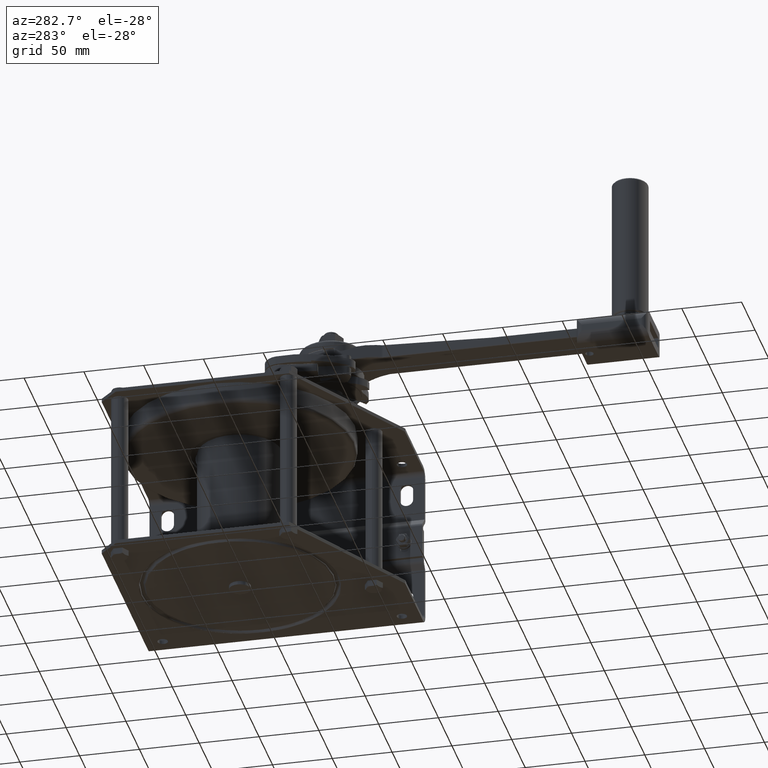
[diagram: clean part render]
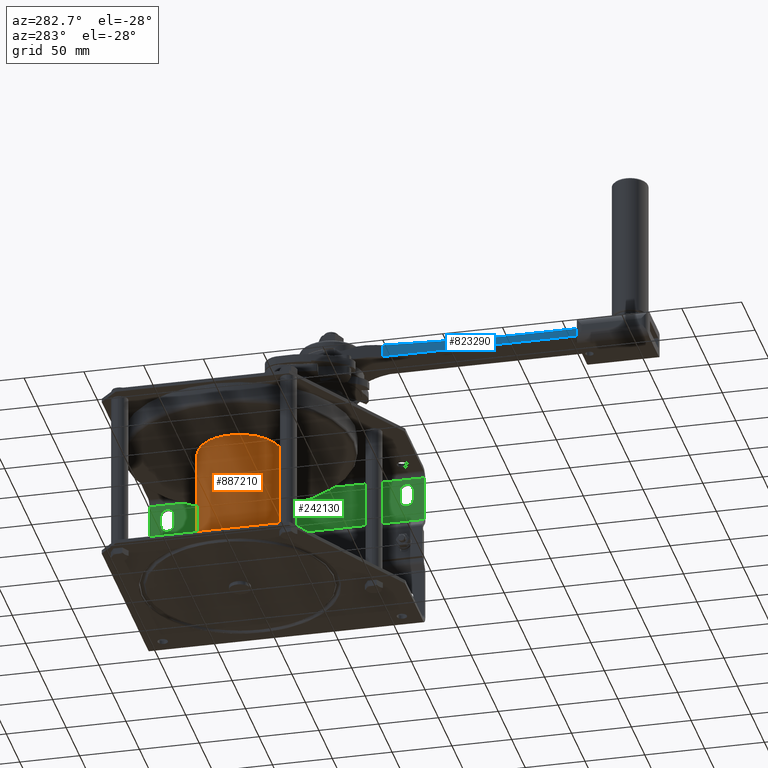
[diagram: same view with three faces highlighted in distinct colors, each labeled with its STEP entity id]
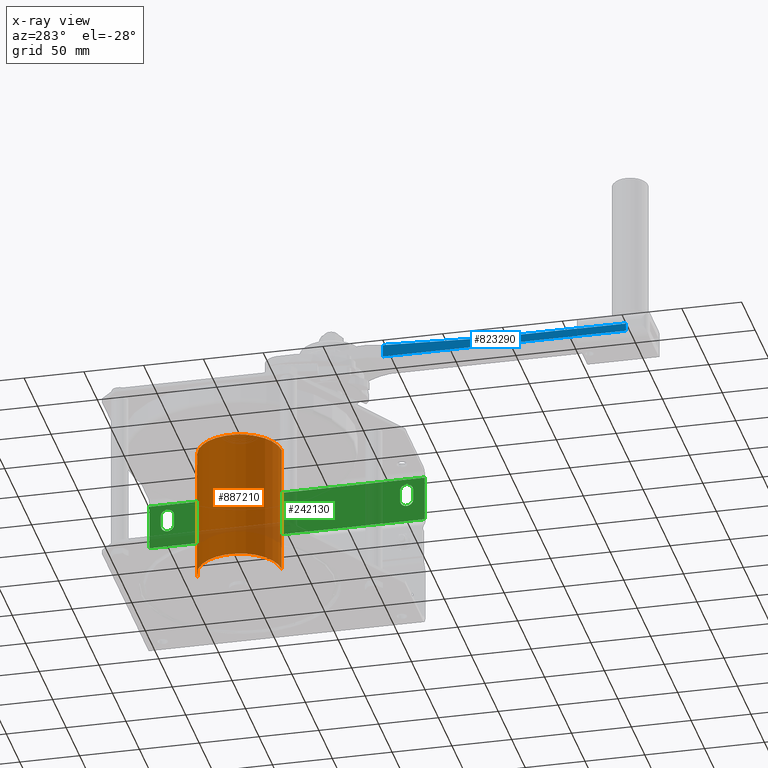
[diagram: x-ray of the same camera — body ghosted, the three highlighted faces saturated]
A machine part, auxiliary view with three faces highlighted in distinct colors.
The next image is the same camera in x-ray (body ghosted, the three faces saturated) — at least one of them is partly hidden behind the body in this view.
Their STEP definitions:

[orange] entity #887210 — the highlighted cylindrical surface (partial cylindrical patch) has radius 35 mm, axis along (0, 0, -1).
#1140=CARTESIAN_POINT('',(-38.9683450918841,-260.918201438849,0.));
#1150=DIRECTION('',(1.,0.,0.));
#1160=DIRECTION('',(0.,-1.,0.));
#1170=AXIS2_PLACEMENT_3D('',#1140,#1150,#1160);
#1180=CIRCLE('',#1170,35.);
#1190=CARTESIAN_POINT('',(-38.9683450918841,-295.918201438849,0.));
#1200=VERTEX_POINT('',#1190);
#1210=CARTESIAN_POINT('',(-38.9683450918841,-225.918201438849,
-4.28626379701574E-15));
#1220=VERTEX_POINT('',#1210);
#1250=EDGE_CURVE('',#1220,#1200,#1180,.T.);
#3950=CARTESIAN_POINT('',(-138.088476459293,-294.459221101346,10.));
#3960=VERTEX_POINT('',#3950);
#4120=CARTESIAN_POINT('',(-147.195951674312,-294.459221101346,10.));
#4130=VERTEX_POINT('',#4120);
#4160=CARTESIAN_POINT('',(-35.9683450918841,-294.459221101346,10.));
#4170=DIRECTION('',(1.,0.,0.));
#4180=VECTOR('',#4170,1.);
#4190=LINE('',#4160,#4180);
#4200=EDGE_CURVE('',#4130,#3960,#4190,.T.);
#4720=CARTESIAN_POINT('',(-35.9683450918841,-295.918201438849,0.));
#4730=DIRECTION('',(1.,0.,0.));
#4740=VECTOR('',#4730,1.);
#4750=LINE('',#4720,#4740);
#4760=CARTESIAN_POINT('',(-148.968345091884,-295.918201438849,0.));
#4770=VERTEX_POINT('',#4760);
#4780=EDGE_CURVE('',#4770,#1200,#4750,.T.);
#4810=CARTESIAN_POINT('',(-35.9683450918841,-225.918201438849,
-4.28626379701574E-15));
#4820=DIRECTION('',(1.,0.,0.));
#4830=VECTOR('',#4820,1.);
#4840=LINE('',#4810,#4830);
#4850=CARTESIAN_POINT('',(-148.968345091884,-225.918201438849,
-4.28626379701574E-15));
#4860=VERTEX_POINT('',#4850);
#4870=EDGE_CURVE('',#4860,#1220,#4840,.T.);
#4890=CARTESIAN_POINT('',(-148.968345091884,-260.918201438849,0.));
#4900=DIRECTION('',(1.,0.,0.));
#4910=DIRECTION('',(0.,-1.,0.));
#4920=AXIS2_PLACEMENT_3D('',#4890,#4900,#4910);
#4930=CIRCLE('',#4920,35.);
#5720=CARTESIAN_POINT('',(-132.557450580084,-260.918201438849,0.));
#5730=DIRECTION('',(-0.916515138991168,0.4,5.61203665667813E-17));
#5740=DIRECTION('',(-0.4,-0.916515138991168,-1.28587913910472E-16));
#5750=AXIS2_PLACEMENT_3D('',#5720,#5730,#5740);
#5760=ELLIPSE('',#5750,38.1881307912987,35.);
#6730=CARTESIAN_POINT('',(-139.341377059975,-295.026886023552,
7.84841613965976));
#6740=VERTEX_POINT('',#6730);
#6780=CARTESIAN_POINT('',(-64.059657628427,-260.918201438849,0.));
#6790=DIRECTION('',(0.412696803190931,-0.910868458470259,
-2.52703909523059E-17));
#6800=DIRECTION('',(0.910868458470259,0.412696803190931,
1.1449523215368E-17));
#6810=AXIS2_PLACEMENT_3D('',#6780,#6790,#6800);
#6820=ELLIPSE('',#6810,84.808023055627,35.);
#6830=EDGE_CURVE('',#3960,#6740,#6820,.T.);
#22110=CARTESIAN_POINT('',(-147.468345091884,-295.083352828761,
7.59884402421954));
#22120=VERTEX_POINT('',#22110);
#22150=EDGE_CURVE('',#22120,#4130,#5760,.T.);
#29210=CARTESIAN_POINT('',(-140.069750117777,-295.322963647538,
6.42746741443273));
#29220=VERTEX_POINT('',#29210);
#29230=CARTESIAN_POINT('',(-143.916729589962,-295.908143948287,
0.839001302859505));
#29240=VERTEX_POINT('',#29230);
#29270=CARTESIAN_POINT('',(-143.916729589962,-295.908143948288,
0.839001302875192));
#29280=CARTESIAN_POINT('',(-143.907771796913,-295.906403399068,
0.911589649184346));
#29290=CARTESIAN_POINT('',(-143.897655053906,-295.904440178436,
0.984033928089503));
#29300=CARTESIAN_POINT('',(-143.886391703851,-295.902258915092,
1.05627766186201));
#29310=CARTESIAN_POINT('',(-143.875127013251,-295.900077392138,
1.12852999395688));
#29320=CARTESIAN_POINT('',(-143.862722359875,-295.897679111346,
1.20054471112048));
#29330=CARTESIAN_POINT('',(-143.849174945952,-295.895066249986,
1.27237100857798));
#29340=CARTESIAN_POINT('',(-143.835624254548,-295.892452756506,
1.34421468272954));
#29350=CARTESIAN_POINT('',(-143.820918590222,-295.889622331774,
1.41592617560064));
#29360=CARTESIAN_POINT('',(-143.805064653012,-295.886579521027,
1.48745900845064));
#29370=CARTESIAN_POINT('',(-143.789210735149,-295.883536713994,
1.55899175401117));
#29380=CARTESIAN_POINT('',(-143.772208562627,-295.880281526336,
1.63034566190468));
#29390=CARTESIAN_POINT('',(-143.754068601153,-295.876819705243,
1.70147256942948));
#29400=CARTESIAN_POINT('',(-143.735928656667,-295.873357887392,
1.77259941035014));
#29410=CARTESIAN_POINT('',(-143.716650953772,-295.869689444415,
1.84349907000315));
#29420=CARTESIAN_POINT('',(-143.696249859953,-295.86582131837,
1.91412245075285));
#29430=CARTESIAN_POINT('',(-143.675848779831,-295.861953194923,
1.9847457840843));
#29440=CARTESIAN_POINT('',(-143.654324350626,-295.857885399384,
2.05509265769575));
#29450=CARTESIAN_POINT('',(-143.631694875725,-295.853626033416,
2.12511373749672));
#29460=CARTESIAN_POINT('',(-143.609065410414,-295.849366669253,
2.19513478762159));
#29470=CARTESIAN_POINT('',(-143.585330951357,-295.844915747993,
2.26482986603913));
#29480=CARTESIAN_POINT('',(-143.560513680145,-295.840282470222,
2.33415004620238));
#29490=CARTESIAN_POINT('',(-143.535696413682,-295.835649193339,
2.40347021309875));
#29500=CARTESIAN_POINT('',(-143.509796395828,-295.830833575285,
2.47241530913741));
#29510=CARTESIAN_POINT('',(-143.482839546407,-295.825845832476,
2.54093740342128));
#29520=CARTESIAN_POINT('',(-143.455882696214,-295.820858089523,
2.60945949966808));
#29530=CARTESIAN_POINT('',(-143.427869082695,-295.815698238791,
2.67755842878124));
#29540=CARTESIAN_POINT('',(-143.398828150253,-295.810377410075,
2.74518778828703));
#29550=CARTESIAN_POINT('',(-143.369787210858,-295.805056580087,
2.81281716398241));
#29560=CARTESIAN_POINT('',(-143.339719026924,-295.799574790347,
2.87997681346053));
#29570=CARTESIAN_POINT('',(-143.30865628741,-295.793943965323,
2.94662234212193));
#29580=CARTESIAN_POINT('',(-143.277593534099,-295.788313137798,
3.01326790038788));
#29590=CARTESIAN_POINT('',(-143.245536304443,-295.782533294097,
3.07939919118904));
#29600=CARTESIAN_POINT('',(-143.212520191476,-295.776617021362,
3.14497425694479));
#29610=CARTESIAN_POINT('',(-143.179504057159,-295.7707007448,
3.21054936510721));
#29620=CARTESIAN_POINT('',(-143.145529122388,-295.764648058821,
3.27556811244016));
#29630=CARTESIAN_POINT('',(-143.110633487671,-295.75847207083,
3.33999136081426));
#29640=CARTESIAN_POINT('',(-143.075737823276,-295.752296077587,
3.40441466397677));
#29650=CARTESIAN_POINT('',(-143.039921544267,-295.745996802098,
3.46824234392457));
#29660=CARTESIAN_POINT('',(-143.003224808714,-295.739587721922,
3.53143842152421));
#29670=CARTESIAN_POINT('',(-142.966528034265,-295.733178634953,
3.59463456610889));
#29680=CARTESIAN_POINT('',(-142.928950890092,-295.726659762881,
3.65719899596626));
#29690=CARTESIAN_POINT('',(-142.890535089789,-295.720044798119,
3.7190991915855));
#29700=CARTESIAN_POINT('',(-142.813753725501,-295.706823518979,
3.84281863597718));
#29710=CARTESIAN_POINT('',(-142.733245477897,-295.693153236043,
3.96449212554464));
#29720=CARTESIAN_POINT('',(-142.649150822278,-295.679116934681,
4.0839630130089));
#29730=CARTESIAN_POINT('',(-142.565060328566,-295.665081327986,
4.20342798777016));
#29740=CARTESIAN_POINT('',(-142.477400165775,-295.650682672947,
4.32066401962363));
#29750=CARTESIAN_POINT('',(-142.386388242627,-295.636018293801,
4.43544730844534));
#29760=CARTESIAN_POINT('',(-142.295376548946,-295.621353951629,
4.55023030786581));
#29770=CARTESIAN_POINT('',(-142.201014662486,-295.606424268125,
4.66255834653025));
#29780=CARTESIAN_POINT('',(-142.103551853745,-295.591331097849,
4.77221957271287));
#29790=CARTESIAN_POINT('',(-142.006089121976,-295.576237939493,
4.88188071228949));
#29800=CARTESIAN_POINT('',(-141.905527222698,-295.560981698545,
4.98887299922797));
#29810=CARTESIAN_POINT('',(-141.802142292596,-295.545666056756,
5.09300443113792));
#29820=CARTESIAN_POINT('',(-141.698757279026,-295.530350402602,
5.19713594711804));
#29830=CARTESIAN_POINT('',(-141.592551106632,-295.514975752156,
5.29840478445138));
#29840=CARTESIAN_POINT('',(-141.483821068822,-295.499644794013,
5.39664483485848));
#29850=CARTESIAN_POINT('',(-141.375090775163,-295.484313799795,
5.49488511643008));
#29860=CARTESIAN_POINT('',(-141.263838552668,-295.469026885278,
5.59009502308857));
#29870=CARTESIAN_POINT('',(-141.150376082323,-295.453882966303,
5.68213880808858));
#29880=CARTESIAN_POINT('',(-141.03691018196,-295.438738589521,
5.77418537561157));
#29890=CARTESIAN_POINT('',(-140.921249294917,-295.423739261498,
5.86305449061014));
#29900=CARTESIAN_POINT('',(-140.803673406592,-295.408972708105,
5.94867188974566));
#29910=CARTESIAN_POINT('',(-140.686036673122,-295.394198513068,
6.03433359560983));
#29920=CARTESIAN_POINT('',(-140.565918420977,-295.379586191947,
6.1171514617583));
#29930=CARTESIAN_POINT('',(-140.443524866962,-295.365222618656,
6.19699377424066));
#29940=CARTESIAN_POINT('',(-140.321131677863,-295.35085908819,
6.27683584867289));
#29950=CARTESIAN_POINT('',(-140.196464336354,-295.33674455031,
6.35370139553813));
#29960=CARTESIAN_POINT('',(-140.069750117779,-295.322963647541,
6.42746741444114));
#29970=B_SPLINE_CURVE_WITH_KNOTS('',3,(#29270,#29280,#29290,#29300,
#29310,#29320,#29330,#29340,#29350,#29360,#29370,#29380,#29390,#29400,
#29410,#29420,#29430,#29440,#29450,#29460,#29470,#29480,#29490,#29500,
#29510,#29520,#29530,#29540,#29550,#29560,#29570,#29580,#29590,#29600,
#29610,#29620,#29630,#29640,#29650,#29660,#29670,#29680,#29690,#29700,
#29710,#29720,#29730,#29740,#29750,#29760,#29770,#29780,#29790,#29800,
#29810,#29820,#29830,#29840,#29850,#29860,#29870,#29880,#29890,#29900,
#29910,#29920,#29930,#29940,#29950,#29960),.UNSPECIFIED.,.F.,.F.,(4,3,3,
3,3,3,3,3,3,3,3,3,3,3,3,3,3,3,3,3,3,3,3,4),(0.,0.219472684100402,
0.438874913104141,0.658612841374631,0.878844113129222,1.09949786942561,
1.32048994747013,1.5417252344632,1.76309981267972,1.98450294149395,
2.20581892594507,2.42692892332758,2.64771273968383,2.86805066743666,
3.08782541410162,3.52728073367279,3.96829706522129,4.41040555525408,
4.8529947984669,5.29536489606961,5.73676267247842,6.17642502874444,
6.61611476493343,7.05731007654863),.UNSPECIFIED.);
#29980=EDGE_CURVE('',#29240,#29220,#29970,.T.);
#30230=EDGE_CURVE('',#4860,#4770,#4930,.T.);
#92870=CARTESIAN_POINT('',(-143.916729589962,-295.908143948287,
0.839001302859505));
#92880=CARTESIAN_POINT('',(-144.067559649119,-295.901374153536,
1.12133069657533));
#92890=CARTESIAN_POINT('',(-144.218294330287,-295.891185868885,
1.40363529798508));
#92900=CARTESIAN_POINT('',(-144.368817036803,-295.877576433115,
1.68585290291929));
#92910=CARTESIAN_POINT('',(-144.519335826561,-295.863967351477,
1.96806316425799));
#92920=CARTESIAN_POINT('',(-144.669651826243,-295.846937175727,
2.25020349289993));
#92930=CARTESIAN_POINT('',(-144.81969330864,-295.826473639242,
2.53229776750367));
#92940=CARTESIAN_POINT('',(-144.969730977882,-295.806010622817,
2.8143848729615));
#92950=CARTESIAN_POINT('',(-145.119477636593,-295.78211595989,
3.09639493664017));
#92960=CARTESIAN_POINT('',(-145.268813509958,-295.754781813935,
3.37826401724428));
#92970=CARTESIAN_POINT('',(-145.418160922835,-295.727445555809,
3.66015487849227));
#92980=CARTESIAN_POINT('',(-145.567037334524,-295.696683727083,
3.94179045043793));
#92990=CARTESIAN_POINT('',(-145.715537025916,-295.662437089309,
4.2235161968515));
#93000=CARTESIAN_POINT('',(-146.012523692932,-295.593946746241,
4.78694356599592));
#93010=CARTESIAN_POINT('',(-146.307811392253,-295.511547796761,
5.35036446398221));
#93020=CARTESIAN_POINT('',(-146.600314149151,-295.415083549538,
5.91313154269702));
#93030=CARTESIAN_POINT('',(-146.746565505758,-295.36685143313,
6.19451504003015));
#93040=CARTESIAN_POINT('',(-146.892120088122,-295.315103290517,
6.47573531449838));
#93050=CARTESIAN_POINT('',(-147.036838732406,-295.259820845438,
6.75671344168294));
#93060=CARTESIAN_POINT('',(-147.181557377872,-295.204538399907,
7.03769157116063));
#93070=CARTESIAN_POINT('',(-147.325440111762,-295.145721675293,
7.31842754547412));
#93080=CARTESIAN_POINT('',(-147.468345091884,-295.083352828761,
7.59884402421953));
#93090=B_SPLINE_CURVE_WITH_KNOTS('',3,(#92870,#92880,#92890,#92900,
#92910,#92920,#92930,#92940,#92950,#92960,#92970,#92980,#92990,#93000,
#93010,#93020,#93030,#93040,#93050,#93060,#93070,#93080),.UNSPECIFIED.,
.F.,.F.,(4,3,3,3,3,3,3,4),(0.,0.960473962419697,1.92089326297305,
2.88138448379833,3.84189322522058,5.76527986408851,6.72774015008772,
7.69032156822526),.UNSPECIFIED.);
#93100=EDGE_CURVE('',#29240,#22120,#93090,.T.);
#93150=CARTESIAN_POINT('',(-139.341377059975,-295.026886023552,
7.84841613965965));
#93160=CARTESIAN_POINT('',(-139.401452027429,-295.054104824235,
7.73012507675297));
#93170=CARTESIAN_POINT('',(-139.461698454632,-295.08068498085,
7.61179357446254));
#93180=CARTESIAN_POINT('',(-139.522104469048,-295.106628123907,
7.49342917497954));
#93190=CARTESIAN_POINT('',(-139.582510483381,-295.132571266927,
7.37506477566133));
#93200=CARTESIAN_POINT('',(-139.643076084955,-295.157877395912,
7.2566674798095));
#93210=CARTESIAN_POINT('',(-139.703789491544,-295.182548211933,
7.13824489730199));
#93220=CARTESIAN_POINT('',(-139.764502898095,-295.207219027938,
7.01982231486937));
#93230=CARTESIAN_POINT('',(-139.825364109651,-295.231254530526,
6.90137444644832));
#93240=CARTESIAN_POINT('',(-139.886361431421,-295.254656497177,
6.78290896499636));
#93250=CARTESIAN_POINT('',(-139.947358753229,-295.278058463842,
6.66444348347089));
#93260=CARTESIAN_POINT('',(-140.008492185174,-295.30082689413,
6.54596038965125));
#93270=CARTESIAN_POINT('',(-140.069750117777,-295.322963647538,
6.42746741443273));
#93280=B_SPLINE_CURVE_WITH_KNOTS('',3,(#93150,#93160,#93170,#93180,
#93190,#93200,#93210,#93220,#93230,#93240,#93250,#93260,#93270),
.UNSPECIFIED.,.F.,.F.,(4,3,3,3,4),(0.,0.406248999550133,
0.812365317840098,1.21831729707885,1.62407242181318),.UNSPECIFIED.);
#93290=EDGE_CURVE('',#6740,#29220,#93280,.T.);
#887020=CARTESIAN_POINT('',(-35.9683450918841,-260.918201438849,0.));
#887030=DIRECTION('',(1.,0.,0.));
#887040=DIRECTION('',(0.,-1.,0.));
#887050=AXIS2_PLACEMENT_3D('',#887020,#887030,#887040);
#887060=CYLINDRICAL_SURFACE('',#887050,35.);
#887070=ORIENTED_EDGE('',*,*,#4780,.T.);
#887080=ORIENTED_EDGE('',*,*,#30230,.T.);
#887090=ORIENTED_EDGE('',*,*,#4870,.F.);
#887100=ORIENTED_EDGE('',*,*,#1250,.F.);
#887110=EDGE_LOOP('',(#887100,#887090,#887080,#887070));
#887120=FACE_OUTER_BOUND('',#887110,.T.);
#887130=ORIENTED_EDGE('',*,*,#93100,.T.);
#887140=ORIENTED_EDGE('',*,*,#29980,.F.);
#887150=ORIENTED_EDGE('',*,*,#93290,.T.);
#887160=ORIENTED_EDGE('',*,*,#6830,.T.);
#887170=ORIENTED_EDGE('',*,*,#4200,.T.);
#887180=ORIENTED_EDGE('',*,*,#22150,.T.);
#887190=EDGE_LOOP('',(#887180,#887170,#887160,#887150,#887140,#887130));
#887200=FACE_BOUND('',#887190,.T.);
#887210=ADVANCED_FACE('',(#887120,#887200),#887060,.T.);

[blue] entity #823290 — the highlighted planar face has unit normal (-1, -0, 0).
#792650=CARTESIAN_POINT('',(-245.531086791681,16.631798561152,
-23.9999679487048));
#792660=VERTEX_POINT('',#792650);
#792690=CARTESIAN_POINT('',(-245.531086791681,-55.8682014388476,
-23.9999679487048));
#792700=DIRECTION('',(0.,1.,-9.71445146547012E-17));
#792710=VECTOR('',#792700,1.);
#792720=LINE('',#792690,#792710);
#792730=CARTESIAN_POINT('',(-245.531086791681,-55.8682014388476,
-23.9999679487048));
#792740=VERTEX_POINT('',#792730);
#792750=EDGE_CURVE('',#792740,#792660,#792720,.T.);
#821690=CARTESIAN_POINT('',(-245.531086791681,-55.8682014388476,
-23.9999679487048));
#821700=DIRECTION('',(-0.0399680383488716,-0.999200958721789,
-1.04083408558608E-17));
#821710=VECTOR('',#821700,1.);
#821720=LINE('',#821690,#821710);
#821730=CARTESIAN_POINT('',(-249.163194441494,-146.670892684177,
-23.9999679487047));
#821740=VERTEX_POINT('',#821730);
#821750=EDGE_CURVE('',#792740,#821740,#821720,.T.);
#822820=CARTESIAN_POINT('',(-237.731086791681,56.6317985611524,
-23.9999679487048));
#822830=DIRECTION('',(0.,9.71445146547012E-17,1.));
#822840=DIRECTION('',(0.,-1.,9.71445146547012E-17));
#822850=AXIS2_PLACEMENT_3D('',#822820,#822830,#822840);
#822860=PLANE('',#822850);
#822870=CARTESIAN_POINT('',(-237.731086791681,-146.670892684177,
-23.9999679487047));
#822880=DIRECTION('',(1.,8.53356277280338E-32,-4.61853741903931E-48));
#822890=VECTOR('',#822880,1.);
#822900=LINE('',#822870,#822890);
#822910=CARTESIAN_POINT('',(-238.731086791681,-146.670892684177,
-23.9999679487047));
#822920=VERTEX_POINT('',#822910);
#822930=EDGE_CURVE('',#821740,#822920,#822900,.T.);
#822940=ORIENTED_EDGE('',*,*,#822930,.T.);
#822950=ORIENTED_EDGE('',*,*,#821750,.T.);
#822960=ORIENTED_EDGE('',*,*,#792750,.F.);
#822970=CARTESIAN_POINT('',(0.,16.631798561152,-23.9999679487048));
#822980=DIRECTION('',(1.,0.,-0.));
#822990=VECTOR('',#822980,1.);
#823000=LINE('',#822970,#822990);
#823010=CARTESIAN_POINT('',(-245.397112495668,16.631798561152,
-23.9999679487048));
#823020=VERTEX_POINT('',#823010);
#823030=EDGE_CURVE('',#792660,#823020,#823000,.T.);
#823040=ORIENTED_EDGE('',*,*,#823030,.F.);
#823050=CARTESIAN_POINT('',(-245.397112495668,76.631798561152,
-23.9999679487048));
#823060=DIRECTION('',(0.,-1.,0.));
#823070=VECTOR('',#823060,1.);
#823080=LINE('',#823050,#823070);
#823090=CARTESIAN_POINT('',(-245.397112495668,56.6317985611525,
-23.9999679487048));
#823100=VERTEX_POINT('',#823090);
#823110=EDGE_CURVE('',#823100,#823020,#823080,.T.);
#823120=ORIENTED_EDGE('',*,*,#823110,.T.);
#823130=CARTESIAN_POINT('',(-237.731086791681,56.6317985611524,
-23.9999679487048));
#823140=DIRECTION('',(-1.,0.,0.));
#823150=VECTOR('',#823140,1.);
#823160=LINE('',#823130,#823150);
#823170=CARTESIAN_POINT('',(-238.731086791681,56.6317985611524,
-23.9999679487048));
#823180=VERTEX_POINT('',#823170);
#823190=EDGE_CURVE('',#823180,#823100,#823160,.T.);
#823200=ORIENTED_EDGE('',*,*,#823190,.T.);
#823210=CARTESIAN_POINT('',(-238.731086791681,56.6317985611524,
-23.9999679487048));
#823220=DIRECTION('',(0.,1.,-9.71445146547012E-17));
#823230=VECTOR('',#823220,1.);
#823240=LINE('',#823210,#823230);
#823250=EDGE_CURVE('',#822920,#823180,#823240,.T.);
#823260=ORIENTED_EDGE('',*,*,#823250,.T.);
#823270=EDGE_LOOP('',(#823260,#823200,#823120,#823040,#822960,#822950,
#822940));
#823280=FACE_OUTER_BOUND('',#823270,.T.);
#823290=ADVANCED_FACE('',(#823280),#822860,.T.);

[green] entity #242130 — the highlighted planar face has unit normal (1, 0, 0).
#119700=CARTESIAN_POINT('',(-124.113034538405,-128.418201438849,-97.));
#119710=VERTEX_POINT('',#119700);
#119740=CARTESIAN_POINT('',(-167.468345091884,-128.418201438849,-97.));
#119750=DIRECTION('',(-1.,0.,0.));
#119760=VECTOR('',#119750,1.);
#119770=LINE('',#119740,#119760);
#119780=CARTESIAN_POINT('',(-162.468345091884,-128.418201438849,-97.));
#119790=VERTEX_POINT('',#119780);
#119800=EDGE_CURVE('',#119710,#119790,#119770,.T.);
#241030=CARTESIAN_POINT('',(-162.468345091884,-358.418201438849,-97.));
#241040=VERTEX_POINT('',#241030);
#241090=CARTESIAN_POINT('',(-162.468345091884,-347.314590512988,-97.));
#241100=DIRECTION('',(0.,-1.,0.));
#241110=VECTOR('',#241100,1.);
#241120=LINE('',#241090,#241110);
#241130=EDGE_CURVE('',#119790,#241040,#241120,.T.);
#241180=CARTESIAN_POINT('',(-881.621005674983,-347.314590512988,-97.));
#241190=DIRECTION('',(0.,0.,-1.));
#241200=DIRECTION('',(1.,0.,0.));
#241210=AXIS2_PLACEMENT_3D('',#241180,#241190,#241200);
#241220=PLANE('',#241210);
#241230=CARTESIAN_POINT('',(-143.613034538405,-348.918201438849,-97.));
#241240=DIRECTION('',(-1.,0.,0.));
#241250=VECTOR('',#241240,1.);
#241260=LINE('',#241230,#241250);
#241270=CARTESIAN_POINT('',(-143.613034538405,-348.918201438849,-97.));
#241280=VERTEX_POINT('',#241270);
#241290=CARTESIAN_POINT('',(-152.613034538405,-348.918201438849,-97.));
#241300=VERTEX_POINT('',#241290);
#241310=EDGE_CURVE('',#241280,#241300,#241260,.T.);
#241320=ORIENTED_EDGE('',*,*,#241310,.T.);
#241330=CARTESIAN_POINT('',(-143.613034538405,-343.418201438849,-97.));
#241340=DIRECTION('',(0.,0.,-1.));
#241350=DIRECTION('',(1.,0.,0.));
#241360=AXIS2_PLACEMENT_3D('',#241330,#241340,#241350);
#241370=CIRCLE('',#241360,5.5);
#241380=CARTESIAN_POINT('',(-143.613034538405,-337.918201438849,-97.));
#241390=VERTEX_POINT('',#241380);
#241400=EDGE_CURVE('',#241390,#241280,#241370,.T.);
#241410=ORIENTED_EDGE('',*,*,#241400,.T.);
#241420=CARTESIAN_POINT('',(-152.613034538405,-337.918201438849,-97.));
#241430=DIRECTION('',(1.,0.,0.));
#241440=VECTOR('',#241430,1.);
#241450=LINE('',#241420,#241440);
#241460=CARTESIAN_POINT('',(-152.613034538405,-337.918201438849,-97.));
#241470=VERTEX_POINT('',#241460);
#241480=EDGE_CURVE('',#241470,#241390,#241450,.T.);
#241490=ORIENTED_EDGE('',*,*,#241480,.T.);
#241500=CARTESIAN_POINT('',(-152.613034538405,-343.418201438849,-97.));
#241510=DIRECTION('',(0.,0.,-1.));
#241520=DIRECTION('',(1.,0.,0.));
#241530=AXIS2_PLACEMENT_3D('',#241500,#241510,#241520);
#241540=CIRCLE('',#241530,5.5);
#241550=EDGE_CURVE('',#241300,#241470,#241540,.T.);
#241560=ORIENTED_EDGE('',*,*,#241550,.T.);
#241570=EDGE_LOOP('',(#241560,#241490,#241410,#241320));
#241580=FACE_BOUND('',#241570,.T.);
#241590=CARTESIAN_POINT('',(-143.613034538405,-148.918201438849,-97.));
#241600=DIRECTION('',(-1.,0.,0.));
#241610=VECTOR('',#241600,1.);
#241620=LINE('',#241590,#241610);
#241630=CARTESIAN_POINT('',(-143.613034538405,-148.918201438849,-97.));
#241640=VERTEX_POINT('',#241630);
#241650=CARTESIAN_POINT('',(-152.613034538405,-148.918201438849,-97.));
#241660=VERTEX_POINT('',#241650);
#241670=EDGE_CURVE('',#241640,#241660,#241620,.T.);
#241680=ORIENTED_EDGE('',*,*,#241670,.T.);
#241690=CARTESIAN_POINT('',(-143.613034538405,-143.418201438849,-97.));
#241700=DIRECTION('',(0.,0.,-1.));
#241710=DIRECTION('',(1.,0.,0.));
#241720=AXIS2_PLACEMENT_3D('',#241690,#241700,#241710);
#241730=CIRCLE('',#241720,5.5);
#241740=CARTESIAN_POINT('',(-143.613034538405,-137.918201438849,-97.));
#241750=VERTEX_POINT('',#241740);
#241760=EDGE_CURVE('',#241750,#241640,#241730,.T.);
#241770=ORIENTED_EDGE('',*,*,#241760,.T.);
#241780=CARTESIAN_POINT('',(-152.613034538405,-137.918201438849,-97.));
#241790=DIRECTION('',(1.,0.,0.));
#241800=VECTOR('',#241790,1.);
#241810=LINE('',#241780,#241800);
#241820=CARTESIAN_POINT('',(-152.613034538405,-137.918201438849,-97.));
#241830=VERTEX_POINT('',#241820);
#241840=EDGE_CURVE('',#241830,#241750,#241810,.T.);
#241850=ORIENTED_EDGE('',*,*,#241840,.T.);
#241860=CARTESIAN_POINT('',(-152.613034538405,-143.418201438849,-97.));
#241870=DIRECTION('',(0.,0.,-1.));
#241880=DIRECTION('',(1.,0.,0.));
#241890=AXIS2_PLACEMENT_3D('',#241860,#241870,#241880);
#241900=CIRCLE('',#241890,5.5);
#241910=EDGE_CURVE('',#241660,#241830,#241900,.T.);
#241920=ORIENTED_EDGE('',*,*,#241910,.T.);
#241930=EDGE_LOOP('',(#241920,#241850,#241770,#241680));
#241940=FACE_BOUND('',#241930,.T.);
#241950=CARTESIAN_POINT('',(-124.113034538405,-347.314590512988,-97.));
#241960=DIRECTION('',(0.,1.,0.));
#241970=VECTOR('',#241960,1.);
#241980=LINE('',#241950,#241970);
#241990=CARTESIAN_POINT('',(-124.113034538405,-358.418201438849,-97.));
#242000=VERTEX_POINT('',#241990);
#242010=EDGE_CURVE('',#242000,#119710,#241980,.T.);
#242020=ORIENTED_EDGE('',*,*,#242010,.T.);
#242030=CARTESIAN_POINT('',(-167.468345091884,-358.418201438849,-97.));
#242040=DIRECTION('',(-1.,0.,0.));
#242050=VECTOR('',#242040,1.);
#242060=LINE('',#242030,#242050);
#242070=EDGE_CURVE('',#242000,#241040,#242060,.T.);
#242080=ORIENTED_EDGE('',*,*,#242070,.F.);
#242090=ORIENTED_EDGE('',*,*,#241130,.T.);
#242100=ORIENTED_EDGE('',*,*,#119800,.T.);
#242110=EDGE_LOOP('',(#242100,#242090,#242080,#242020));
#242120=FACE_OUTER_BOUND('',#242110,.T.);
#242130=ADVANCED_FACE('',(#241580,#241940,#242120),#241220,.F.);